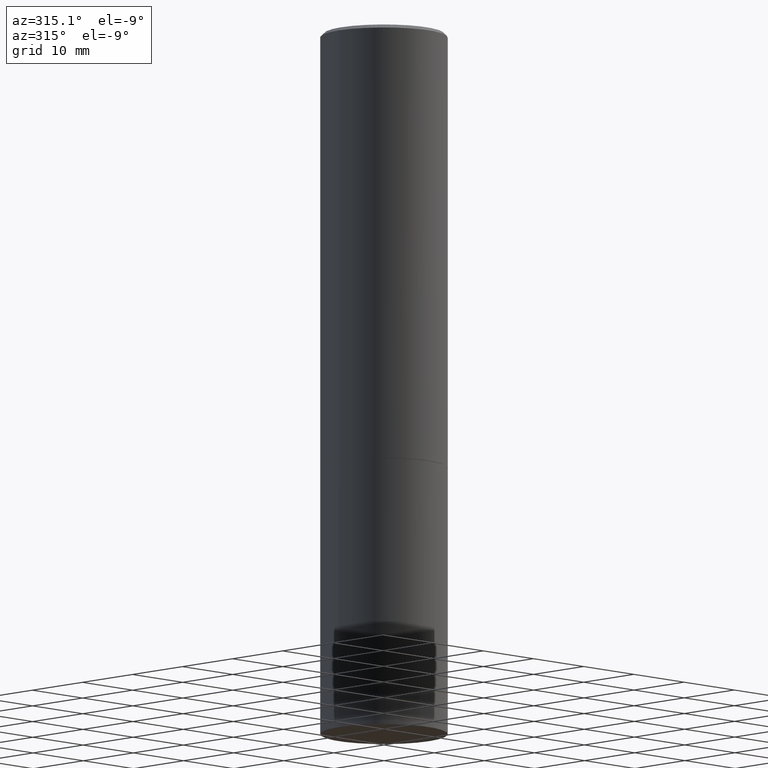
[diagram: clean part render]
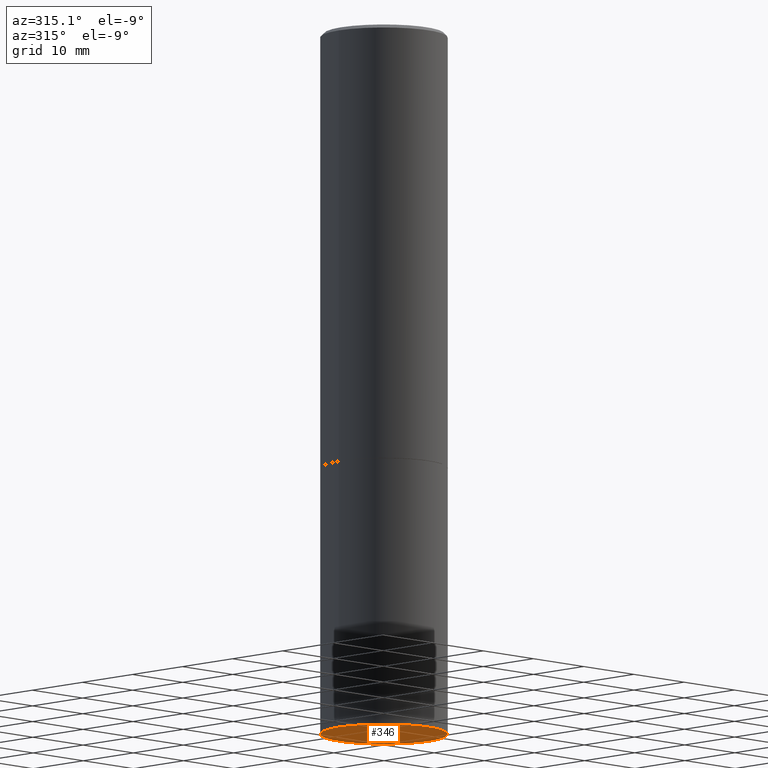
[diagram: same view with one face highlighted and labeled with its STEP entity id]
A machine part, auxiliary view. The second image highlights one B-rep face of the part: STEP entity #346.
In plain terms, the highlighted planar face has unit normal (0, -0, -1).
Its self-contained STEP definition (entity closure, byte-faithful):
#1 = ORIENTED_EDGE ( 'NONE', *, *, #295, .F. ) ;
#2 = FACE_OUTER_BOUND ( 'NONE', #222, .T. ) ;
#25 = DIRECTION ( 'NONE',  ( -2.445468806185136597E-29, 3.491481338843145583E-15, 1.000000000000000000 ) ) ;
#61 = DIRECTION ( 'NONE',  ( -2.445468806185136597E-29, 3.491481338843145583E-15, 1.000000000000000000 ) ) ;
#77 = CARTESIAN_POINT ( 'NONE',  ( -0.3543499999999999983, -8.616351231337934377E-15, -3.937000000000000277 ) ) ;
#85 = CIRCLE ( 'NONE', #182, 0.3543499999999999983 ) ;
#120 = ORIENTED_EDGE ( 'NONE', *, *, #272, .F. ) ;
#127 = PLANE ( 'NONE',  #259 ) ;
#134 = VERTEX_POINT ( 'NONE', #198 ) ;
#145 = DIRECTION ( 'NONE',  ( 1.000000000000000000, -6.982962677686265922E-15, 0.000000000000000000 ) ) ;
#160 = CARTESIAN_POINT ( 'NONE',  ( 2.474412824838224146E-15, 0.3543499999999862871, -3.937000000000001165 ) ) ;
#164 = CIRCLE ( 'NONE', #329, 0.3543499999999999983 ) ;
#170 = DIRECTION ( 'NONE',  ( 1.000000000000000000, -6.982962677686265922E-15, 0.000000000000000000 ) ) ;
#182 = AXIS2_PLACEMENT_3D ( 'NONE', #199, #25, #170 ) ;
#198 = CARTESIAN_POINT ( 'NONE',  ( 0.3543499999999999983, -1.622037485586359329E-14, -3.937000000000000277 ) ) ;
#199 = CARTESIAN_POINT ( 'NONE',  ( 9.627810689950883669E-29, -1.374596203102546341E-14, -3.937000000000000277 ) ) ;
#222 = EDGE_LOOP ( 'NONE', ( #120, #1 ) ) ;
#242 = DIRECTION ( 'NONE',  ( -1.000000000000000000, 6.982962677686265922E-15, -4.876176775795935793E-29 ) ) ;
#259 = AXIS2_PLACEMENT_3D ( 'NONE', #160, #347, #242 ) ;
#272 = EDGE_CURVE ( 'NONE', #134, #299, #85, .T. ) ;
#295 = EDGE_CURVE ( 'NONE', #299, #134, #164, .T. ) ;
#299 = VERTEX_POINT ( 'NONE', #77 ) ;
#310 = CARTESIAN_POINT ( 'NONE',  ( 9.627810689950883669E-29, -1.374596203102546341E-14, -3.937000000000000277 ) ) ;
#329 = AXIS2_PLACEMENT_3D ( 'NONE', #310, #61, #145 ) ;
#346 = ADVANCED_FACE ( 'NONE', ( #2 ), #127, .T. ) ;
#347 = DIRECTION ( 'NONE',  ( 2.438088387897960049E-29, -3.491481338843145188E-15, -1.000000000000000000 ) ) ;